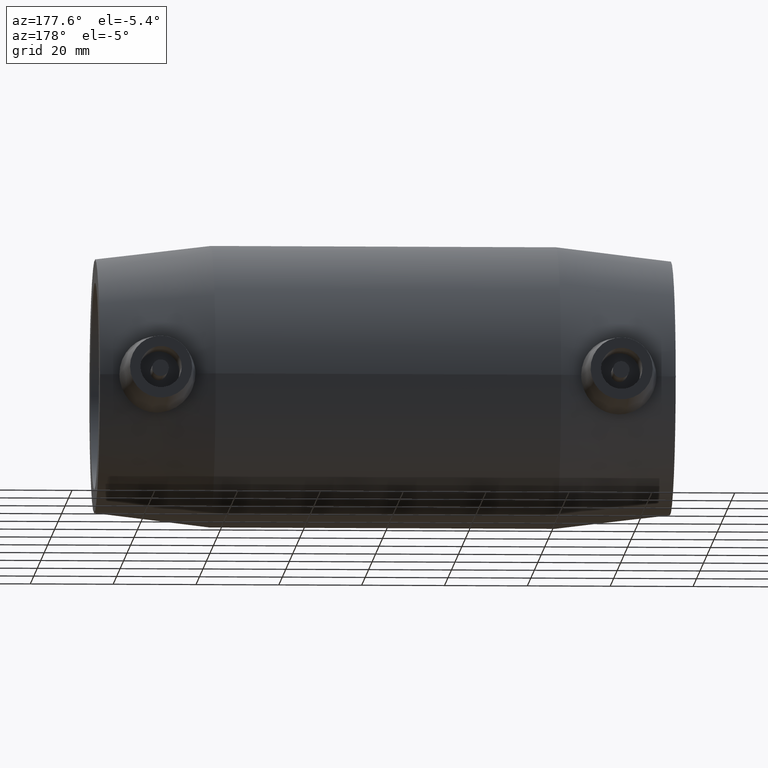
[diagram: clean part render]
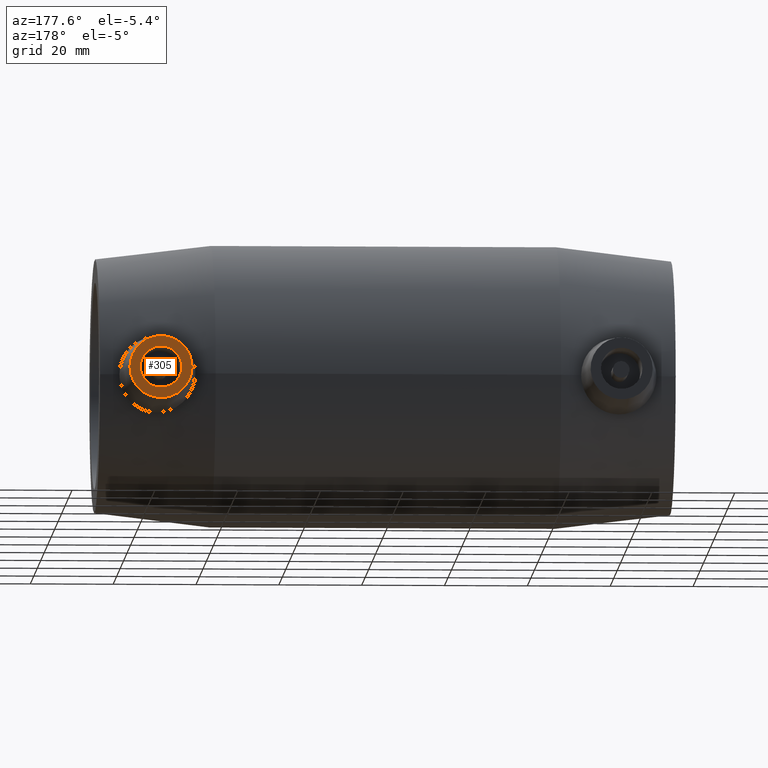
[diagram: same view with one face highlighted and labeled with its STEP entity id]
A machine part, auxiliary view. The second image highlights one B-rep face of the part: STEP entity #305.
In plain terms, the highlighted planar face has unit normal (0, -1, 0).
Its self-contained STEP definition (entity closure, byte-faithful):
#31=FACE_BOUND('',#108,.T.);
#71=FACE_OUTER_BOUND('',#107,.T.);
#107=EDGE_LOOP('',(#245));
#108=EDGE_LOOP('',(#246));
#148=CIRCLE('',#331,5.);
#154=CIRCLE('',#344,7.5);
#174=VERTEX_POINT('',#499);
#180=VERTEX_POINT('',#518);
#202=EDGE_CURVE('',#174,#174,#148,.T.);
#208=EDGE_CURVE('',#180,#180,#154,.T.);
#245=ORIENTED_EDGE('',*,*,#208,.T.);
#246=ORIENTED_EDGE('',*,*,#202,.T.);
#288=PLANE('',#345);
#305=ADVANCED_FACE('',(#71,#31),#288,.F.);
#331=AXIS2_PLACEMENT_3D('',#500,#393,#394);
#344=AXIS2_PLACEMENT_3D('',#519,#419,#420);
#345=AXIS2_PLACEMENT_3D('',#555,#421,#422);
#393=DIRECTION('center_axis',(0.,-1.,0.));
#394=DIRECTION('ref_axis',(1.,0.,0.));
#419=DIRECTION('center_axis',(0.,1.,0.));
#420=DIRECTION('ref_axis',(-1.,0.,0.));
#421=DIRECTION('center_axis',(0.,-1.,0.));
#422=DIRECTION('ref_axis',(0.,0.,1.));
#499=CARTESIAN_POINT('',(50.6,51.,-6.12323399573677E-16));
#500=CARTESIAN_POINT('Origin',(55.6,51.,0.));
#518=CARTESIAN_POINT('',(63.1,51.,9.18485099360515E-16));
#519=CARTESIAN_POINT('Origin',(55.6,51.,0.));
#555=CARTESIAN_POINT('Origin',(55.6,51.,1.2335811384724E-16));